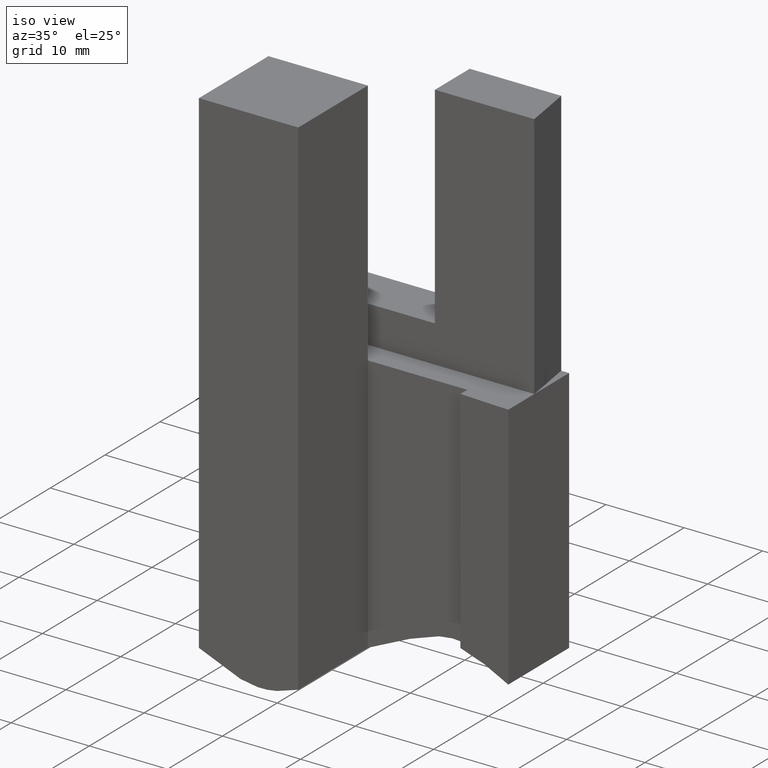
[diagram: clean part render]
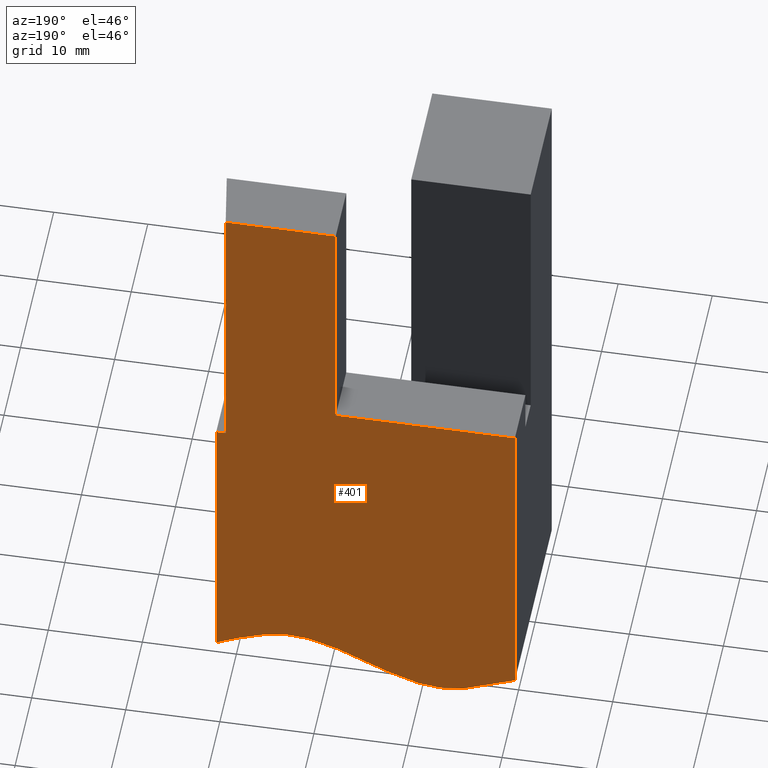
[diagram: tour spotlight — one face highlighted and labeled with its STEP entity id]
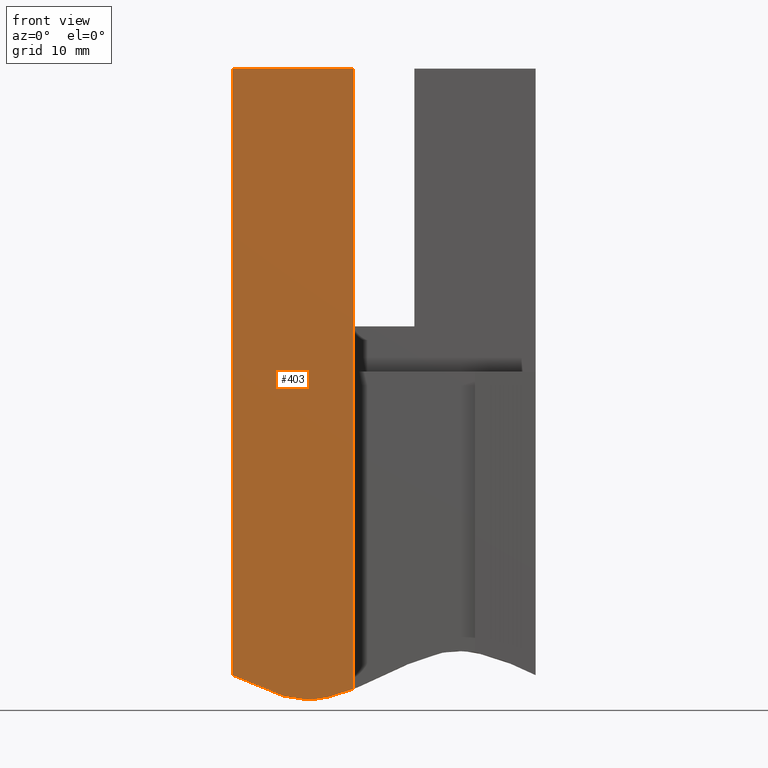
[diagram: tour spotlight — one face highlighted and labeled with its STEP entity id]
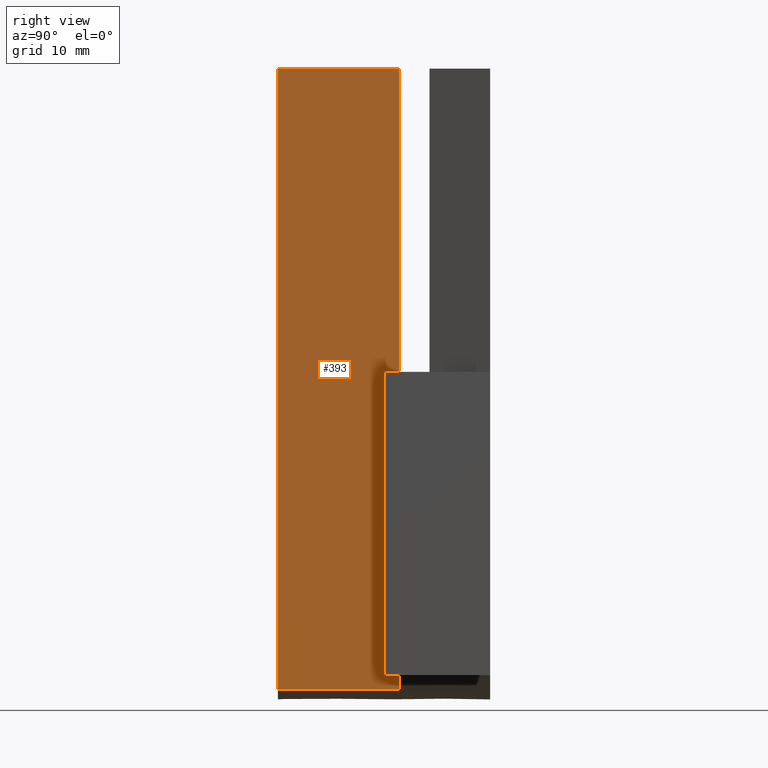
[diagram: tour spotlight — one face highlighted and labeled with its STEP entity id]
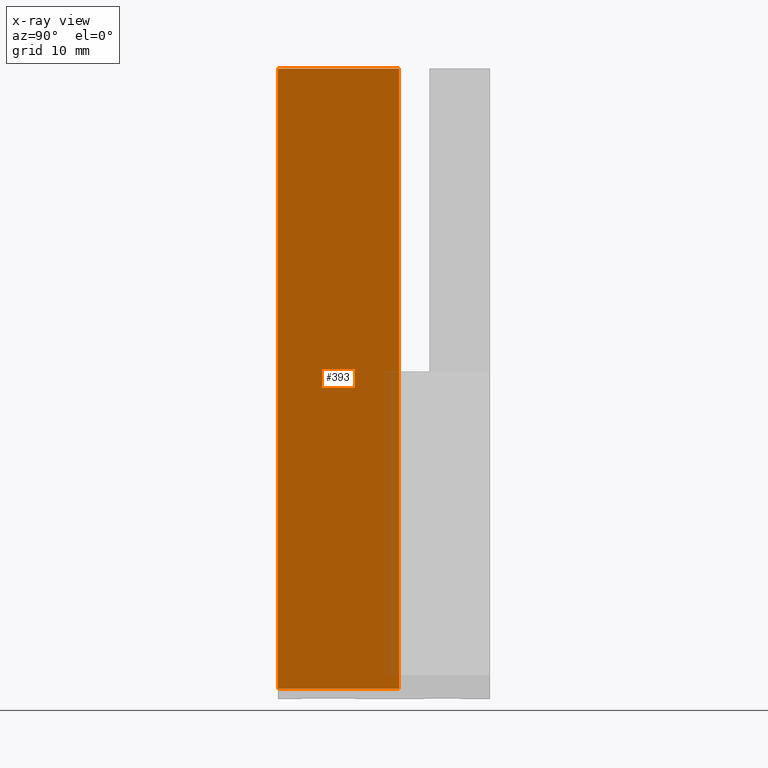
[diagram: x-ray of the same camera — body ghosted, this tour face saturated]
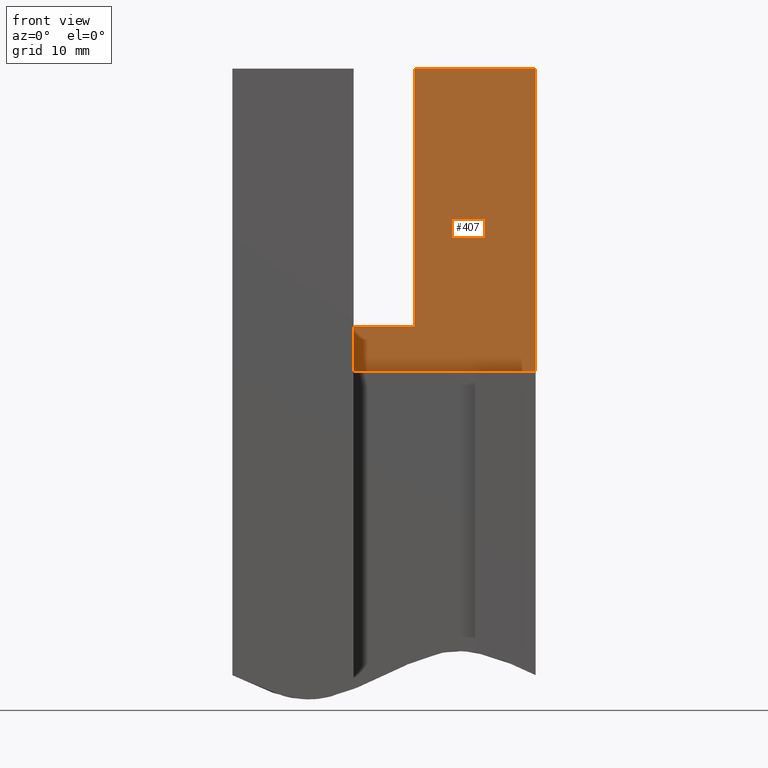
[diagram: tour spotlight — one face highlighted and labeled with its STEP entity id]
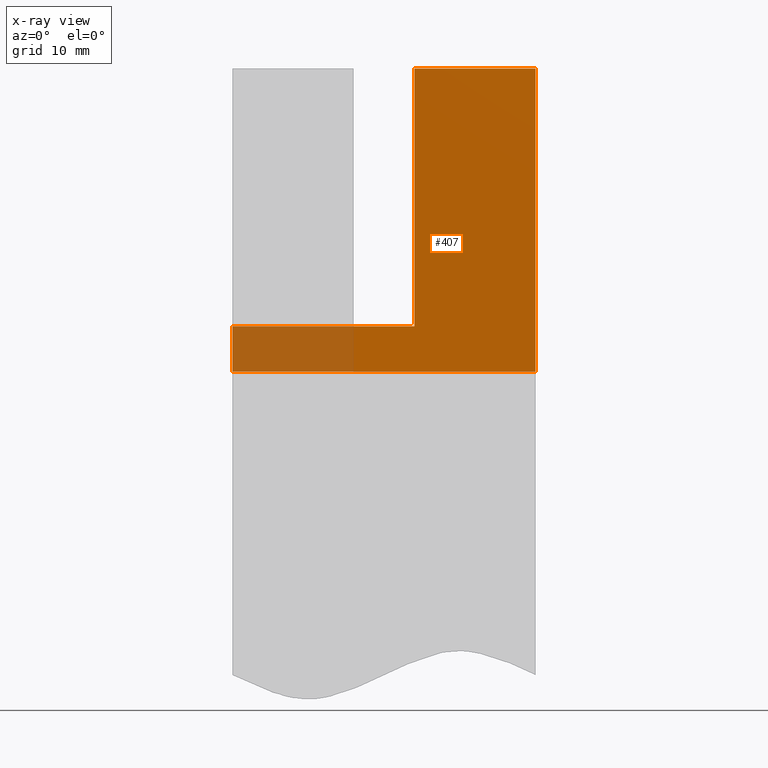
[diagram: x-ray of the same camera — body ghosted, this tour face saturated]
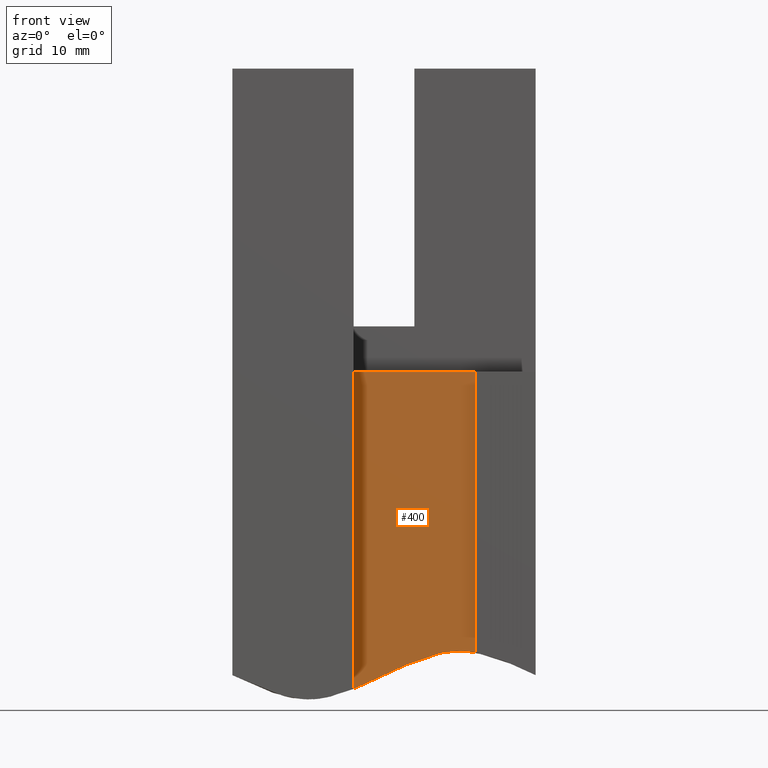
[diagram: tour spotlight — one face highlighted and labeled with its STEP entity id]
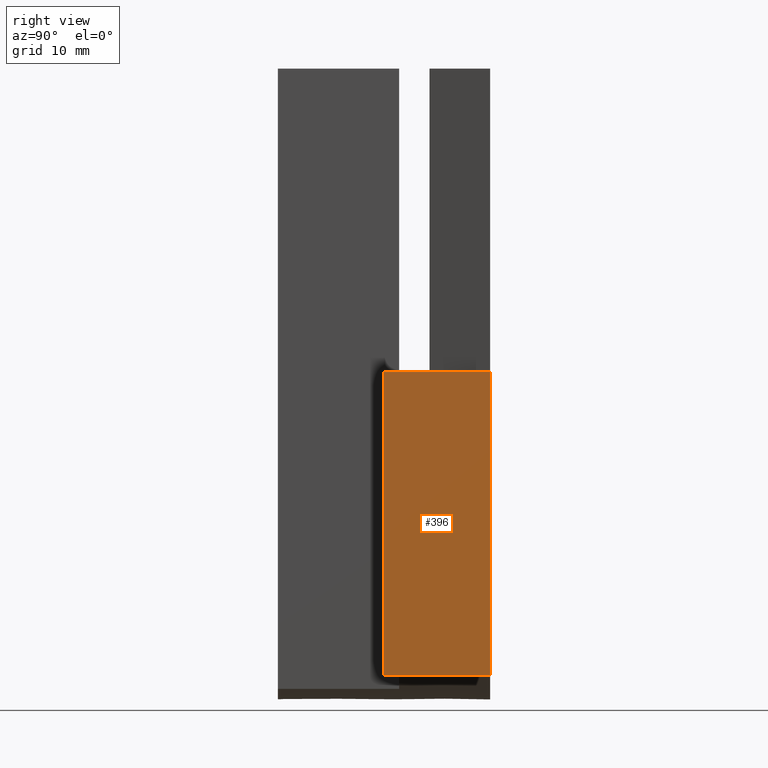
[diagram: tour spotlight — one face highlighted and labeled with its STEP entity id]
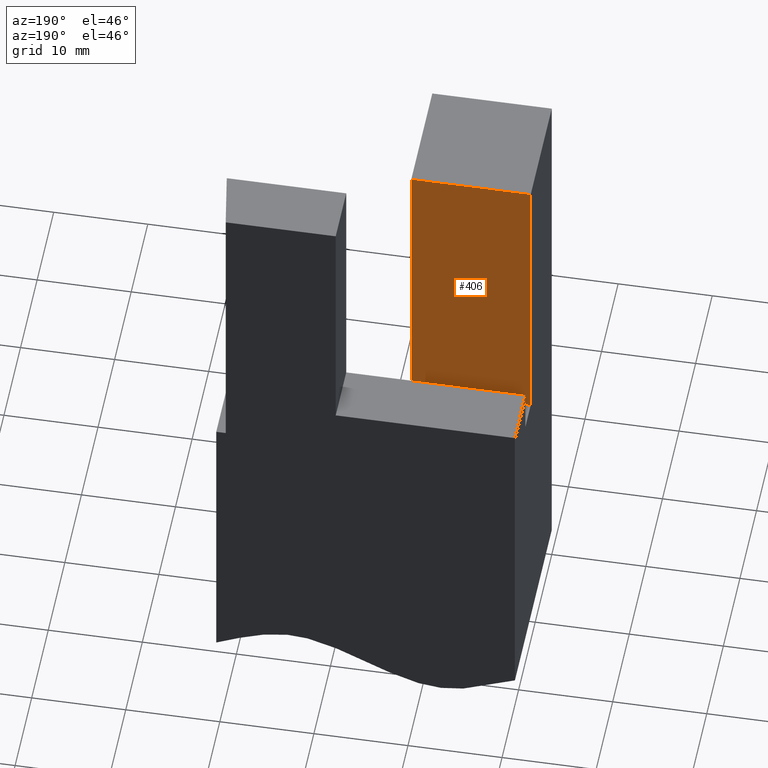
[diagram: tour spotlight — one face highlighted and labeled with its STEP entity id]
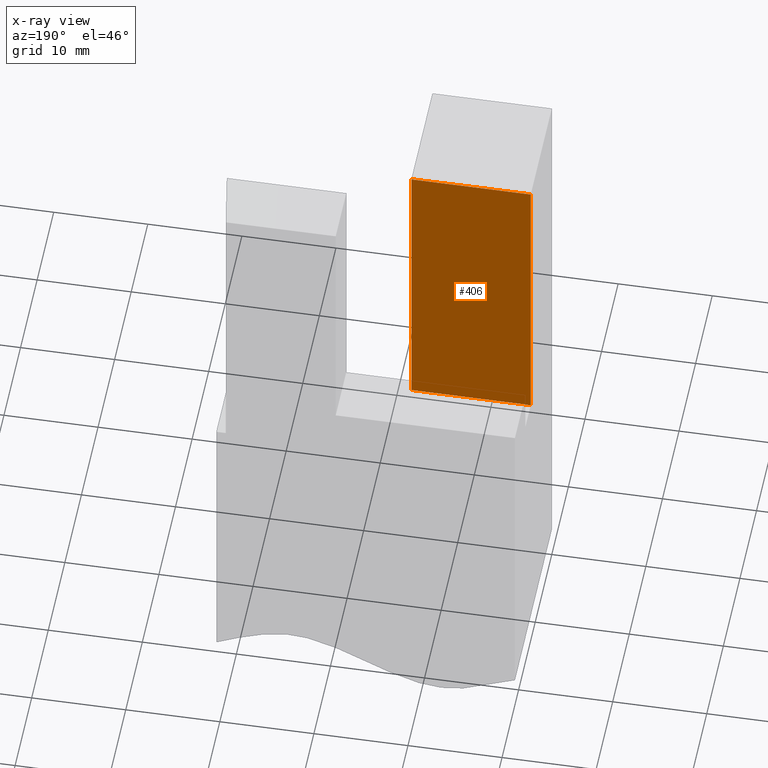
[diagram: x-ray of the same camera — body ghosted, this tour face saturated]
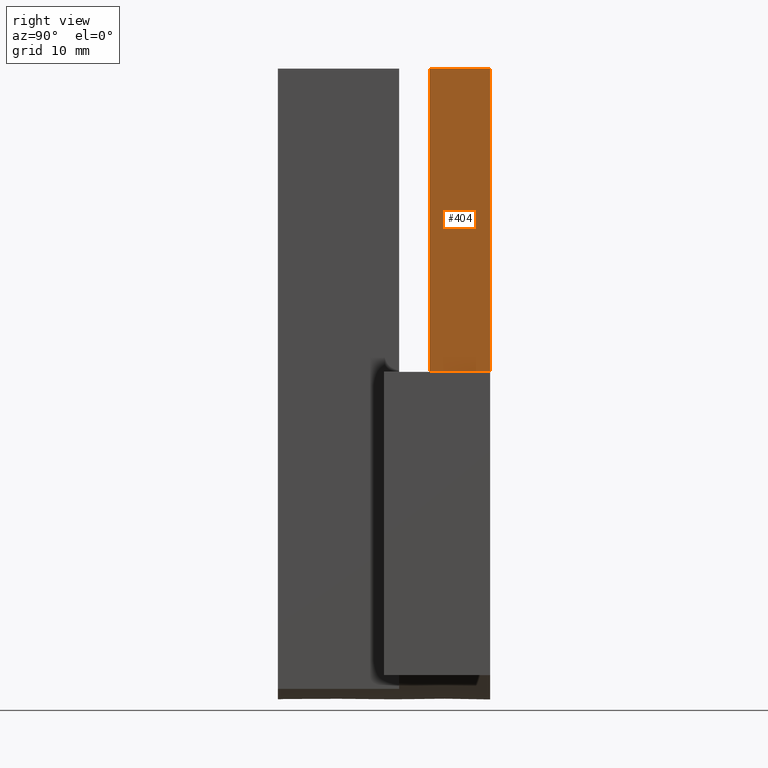
[diagram: tour spotlight — one face highlighted and labeled with its STEP entity id]
A machine part: a face-by-face anatomy tour. The part has 18 B-rep faces; the first image is the clean iso view, then the 8 largest visible faces are spotlighted one at a time (largest first), each with its STEP entity span.

Face 1 — auxiliary view, entity #401. In plain terms, the highlighted planar face has unit normal (0, 1, 0).
Definition (entity closure, byte-faithful):
#123=VECTOR('',#446,1.);
#127=VECTOR('',#451,1.);
#131=VECTOR('',#456,1.);
#134=VECTOR('',#460,1.);
#135=VECTOR('',#463,1.);
#136=VECTOR('',#464,1.);
#137=VECTOR('',#465,1.);
#162=LINE('',#528,#123);
#166=LINE('',#537,#127);
#170=LINE('',#545,#131);
#173=LINE('',#551,#134);
#174=LINE('',#562,#135);
#175=LINE('',#564,#136);
#176=LINE('',#573,#137);
#200=VERTEX_POINT('',#527);
#201=VERTEX_POINT('',#529);
#204=VERTEX_POINT('',#536);
#205=VERTEX_POINT('',#538);
#207=VERTEX_POINT('',#544);
#209=VERTEX_POINT('',#550);
#210=VERTEX_POINT('',#563);
#211=VERTEX_POINT('',#572);
#219=B_SPLINE_CURVE_WITH_KNOTS('',3,(#565,#566,#567,#568,#569,#570,#571),
 .UNSPECIFIED.,.F.,.U.,(4,1,1,1,4),(0.,0.25,0.5,0.75,1.),.UNSPECIFIED.);
#239=EDGE_CURVE('',#201,#200,#162,.T.);
#243=EDGE_CURVE('',#205,#204,#166,.T.);
#247=EDGE_CURVE('',#204,#207,#170,.T.);
#250=EDGE_CURVE('',#209,#207,#173,.T.);
#252=EDGE_CURVE('',#209,#210,#174,.T.);
#253=EDGE_CURVE('',#210,#201,#175,.T.);
#254=EDGE_CURVE('',#200,#211,#219,.F.);
#255=EDGE_CURVE('',#205,#211,#176,.T.);
#307=ORIENTED_EDGE('',*,*,#243,.T.);
#308=ORIENTED_EDGE('',*,*,#247,.T.);
#309=ORIENTED_EDGE('',*,*,#250,.F.);
#310=ORIENTED_EDGE('',*,*,#252,.T.);
#311=ORIENTED_EDGE('',*,*,#253,.T.);
#312=ORIENTED_EDGE('',*,*,#239,.T.);
#313=ORIENTED_EDGE('',*,*,#254,.T.);
#314=ORIENTED_EDGE('',*,*,#255,.F.);
#365=EDGE_LOOP('',(#307,#308,#309,#310,#311,#312,#313,#314));
#383=FACE_BOUND('',#365,.T.);
#401=ADVANCED_FACE('',(#383),#623,.T.);
#419=AXIS2_PLACEMENT_3D('',#561,#462,$);
#446=DIRECTION('',(0.,0.,-1.));
#451=DIRECTION('',(1.,0.,0.));
#456=DIRECTION('',(0.,0.,1.));
#460=DIRECTION('',(-1.,0.,0.));
#462=DIRECTION('',(0.,1.,0.));
#463=DIRECTION('',(0.,0.,-1.));
#464=DIRECTION('',(1.,0.,0.));
#465=DIRECTION('',(0.,0.,-1.));
#527=CARTESIAN_POINT('',(1.24999999999999,0.875,-2.49999999999998));
#528=CARTESIAN_POINT('',(1.25,0.875,0.));
#529=CARTESIAN_POINT('',(1.25,0.875,-1.25));
#536=CARTESIAN_POINT('',(0.749999999999996,0.875,-1.0625));
#537=CARTESIAN_POINT('',(0.499999999999999,0.875,-1.0625));
#538=CARTESIAN_POINT('',(1.95178083614109E-16,0.875,-1.0625));
#544=CARTESIAN_POINT('',(0.749999999999996,0.875,0.));
#545=CARTESIAN_POINT('',(0.749999999999996,0.875,0.));
#550=CARTESIAN_POINT('',(1.21040388991886,0.875,0.));
#551=CARTESIAN_POINT('',(1.25,0.875,0.));
#561=CARTESIAN_POINT('',(0.625,0.875,0.));
#562=CARTESIAN_POINT('',(1.21040388991886,0.875,0.));
#563=CARTESIAN_POINT('',(1.21040388991886,0.875,-1.25));
#564=CARTESIAN_POINT('',(0.932160951058981,0.875,-1.25));
#565=CARTESIAN_POINT('',(-8.39223703653661E-15,0.875,-2.49999999999995));
#566=CARTESIAN_POINT('',(0.104166666666656,0.875,-2.54999999999996));
#567=CARTESIAN_POINT('',(0.312499999999986,0.875,-2.64999999999996));
#568=CARTESIAN_POINT('',(0.624999999999992,0.875,-2.49999999999998));
#569=CARTESIAN_POINT('',(0.937499999999992,0.875,-2.34999999999998));
#570=CARTESIAN_POINT('',(1.14583333333333,0.875,-2.44999999999998));
#571=CARTESIAN_POINT('',(1.24999999999999,0.875,-2.49999999999998));
#572=CARTESIAN_POINT('',(-8.39223703653661E-15,0.875,-2.49999999999995));
#573=CARTESIAN_POINT('',(0.,0.875,0.));
#623=PLANE('',#419);

Face 2 — front view, entity #403. In plain terms, the highlighted planar face has unit normal (0, -1, 0).
Definition (entity closure, byte-faithful):
#111=VECTOR('',#431,1.);
#139=VECTOR('',#468,1.);
#140=VECTOR('',#469,1.);
#150=LINE('',#494,#111);
#178=LINE('',#599,#139);
#179=LINE('',#601,#140);
#190=VERTEX_POINT('',#495);
#191=VERTEX_POINT('',#496);
#212=VERTEX_POINT('',#596);
#213=VERTEX_POINT('',#600);
#220=B_SPLINE_CURVE_WITH_KNOTS('',3,(#588,#589,#590,#591,#592,#593,#594,
#595),.UNSPECIFIED.,.F.,.U.,(4,2,2,4),(0.,0.732094420139848,1.07029212507306,
1.37600662563691),.UNSPECIFIED.);
#225=EDGE_CURVE('',#190,#191,#150,.T.);
#256=EDGE_CURVE('',#212,#190,#220,.T.);
#258=EDGE_CURVE('',#213,#191,#178,.T.);
#259=EDGE_CURVE('',#213,#212,#179,.T.);
#323=ORIENTED_EDGE('',*,*,#256,.T.);
#324=ORIENTED_EDGE('',*,*,#225,.T.);
#325=ORIENTED_EDGE('',*,*,#258,.F.);
#326=ORIENTED_EDGE('',*,*,#259,.T.);
#367=EDGE_LOOP('',(#323,#324,#325,#326));
#385=FACE_BOUND('',#367,.T.);
#403=ADVANCED_FACE('',(#385),#624,.T.);
#420=AXIS2_PLACEMENT_3D('',#598,#467,$);
#431=DIRECTION('',(0.,0.,1.));
#467=DIRECTION('',(1.04902962956708E-16,-1.,0.));
#468=DIRECTION('',(1.,1.04902962956708E-16,0.));
#469=DIRECTION('',(0.,0.,-1.));
#494=CARTESIAN_POINT('',(0.499999999999992,4.37095678986282E-17,0.));
#495=CARTESIAN_POINT('',(0.499999999999992,4.37095678986282E-17,-2.55679999999997));
#496=CARTESIAN_POINT('',(0.499999999999992,1.83580185174238E-15,0.));
#588=CARTESIAN_POINT('',(-8.39223703653661E-15,0.,-2.49999999999995));
#589=CARTESIAN_POINT('',(0.0866141732283283,9.08608340569808E-18,-2.54157480314956));
#590=CARTESIAN_POINT('',(0.17322834645668,-9.08608340569972E-18,-2.58314960629917));
#591=CARTESIAN_POINT('',(0.299854728212617,4.19739922898524E-18,-2.60190738797095));
#592=CARTESIAN_POINT('',(0.340608797792548,-5.15650322808514E-18,-2.60181108190873));
#593=CARTESIAN_POINT('',(0.434197524855042,4.66123154011714E-18,-2.58234349402926));
#594=CARTESIAN_POINT('',(0.478239572067207,-4.34775232119665E-18,-2.56627180630594));
#595=CARTESIAN_POINT('',(0.519685039370079,0.,-2.54863740931258));
#596=CARTESIAN_POINT('',(-8.39223703653661E-15,0.,-2.49999999999995));
#598=CARTESIAN_POINT('',(0.625,6.55643518479423E-17,0.));
#599=CARTESIAN_POINT('',(0.,0.,0.));
#600=CARTESIAN_POINT('',(0.,0.,0.));
#601=CARTESIAN_POINT('',(0.,0.,0.));
#624=PLANE('',#420);

Face 3 — right view, entity #393. An x-ray twin of the same camera follows (body ghosted, this face saturated) — the face is partly hidden behind the body. In plain terms, the highlighted planar face has unit normal (-1, 0, 0).
Definition (entity closure, byte-faithful):
#111=VECTOR('',#431,1.);
#112=VECTOR('',#432,1.);
#113=VECTOR('',#433,1.);
#114=VECTOR('',#434,1.);
#150=LINE('',#494,#111);
#151=LINE('',#502,#112);
#152=LINE('',#504,#113);
#153=LINE('',#506,#114);
#190=VERTEX_POINT('',#495);
#191=VERTEX_POINT('',#496);
#192=VERTEX_POINT('',#501);
#193=VERTEX_POINT('',#503);
#194=VERTEX_POINT('',#505);
#216=B_SPLINE_CURVE_WITH_KNOTS('',3,(#497,#498,#499,#500),.UNSPECIFIED.,
 .F.,.U.,(4,4),(0.,1.37),.UNSPECIFIED.);
#225=EDGE_CURVE('',#190,#191,#150,.T.);
#226=EDGE_CURVE('',#190,#192,#216,.T.);
#227=EDGE_CURVE('',#192,#193,#151,.T.);
#228=EDGE_CURVE('',#194,#193,#152,.T.);
#229=EDGE_CURVE('',#191,#194,#153,.T.);
#270=ORIENTED_EDGE('',*,*,#225,.F.);
#271=ORIENTED_EDGE('',*,*,#226,.T.);
#272=ORIENTED_EDGE('',*,*,#227,.T.);
#273=ORIENTED_EDGE('',*,*,#228,.F.);
#274=ORIENTED_EDGE('',*,*,#229,.F.);
#357=EDGE_LOOP('',(#270,#271,#272,#273,#274));
#375=FACE_BOUND('',#357,.T.);
#393=ADVANCED_FACE('',(#375),#615,.F.);
#411=AXIS2_PLACEMENT_3D('',#493,#430,$);
#430=DIRECTION('',(-1.,7.86772222175311E-15,0.));
#431=DIRECTION('',(0.,0.,1.));
#432=DIRECTION('',(0.,0.,1.));
#433=DIRECTION('',(0.,0.,-1.));
#434=DIRECTION('',(7.86772222175311E-15,1.,0.));
#493=CARTESIAN_POINT('',(0.499999999999994,0.250000000000001,0.));
#494=CARTESIAN_POINT('',(0.499999999999992,4.37095678986282E-17,0.));
#495=CARTESIAN_POINT('',(0.499999999999992,4.37095678986282E-17,-2.55679999999997));
#496=CARTESIAN_POINT('',(0.499999999999992,1.83580185174238E-15,0.));
#497=CARTESIAN_POINT('',(0.499999999999992,-0.019685039370079,-2.55679999999997));
#498=CARTESIAN_POINT('',(0.499999999999993,0.16010498687664,-2.55679999999997));
#499=CARTESIAN_POINT('',(0.499999999999995,0.33989501312336,-2.55679999999997));
#500=CARTESIAN_POINT('',(0.499999999999996,0.519685039370079,-2.55679999999997));
#501=CARTESIAN_POINT('',(0.5,0.5,-2.55679999999997));
#502=CARTESIAN_POINT('',(0.5,0.5,-4.78113594738593));
#503=CARTESIAN_POINT('',(0.500000000000002,0.500000000000011,-1.25));
#504=CARTESIAN_POINT('',(0.499999999999996,0.5,0.));
#505=CARTESIAN_POINT('',(0.499999999999996,0.5,0.));
#506=CARTESIAN_POINT('',(0.499999999999995,0.343750000000001,0.));
#615=PLANE('',#411);

Face 4 — front view, entity #407. An x-ray twin of the same camera follows (body ghosted, this face saturated) — the face is partly hidden behind the body. In plain terms, the highlighted planar face has unit normal (0, 1, 0).
Definition (entity closure, byte-faithful):
#118=VECTOR('',#440,1.);
#125=VECTOR('',#449,1.);
#129=VECTOR('',#454,1.);
#132=VECTOR('',#458,1.);
#142=VECTOR('',#472,1.);
#145=VECTOR('',#478,1.);
#157=LINE('',#519,#118);
#164=LINE('',#532,#125);
#168=LINE('',#541,#129);
#171=LINE('',#547,#132);
#181=LINE('',#604,#142);
#184=LINE('',#611,#145);
#197=VERTEX_POINT('',#518);
#198=VERTEX_POINT('',#520);
#202=VERTEX_POINT('',#533);
#203=VERTEX_POINT('',#534);
#206=VERTEX_POINT('',#542);
#208=VERTEX_POINT('',#548);
#234=EDGE_CURVE('',#197,#198,#157,.T.);
#241=EDGE_CURVE('',#202,#203,#164,.T.);
#245=EDGE_CURVE('',#206,#203,#168,.T.);
#248=EDGE_CURVE('',#206,#208,#171,.T.);
#261=EDGE_CURVE('',#197,#208,#181,.T.);
#264=EDGE_CURVE('',#198,#202,#184,.T.);
#338=ORIENTED_EDGE('',*,*,#245,.T.);
#339=ORIENTED_EDGE('',*,*,#241,.F.);
#340=ORIENTED_EDGE('',*,*,#264,.F.);
#341=ORIENTED_EDGE('',*,*,#234,.F.);
#342=ORIENTED_EDGE('',*,*,#261,.T.);
#343=ORIENTED_EDGE('',*,*,#248,.F.);
#371=EDGE_LOOP('',(#338,#339,#340,#341,#342,#343));
#389=FACE_BOUND('',#371,.T.);
#407=ADVANCED_FACE('',(#389),#628,.F.);
#424=AXIS2_PLACEMENT_3D('',#610,#477,$);
#440=DIRECTION('',(-1.,1.54557032089551E-14,0.));
#449=DIRECTION('',(1.,-1.54557032089551E-14,0.));
#454=DIRECTION('',(0.,0.,-1.));
#458=DIRECTION('',(1.,-1.54557032089551E-14,0.));
#472=DIRECTION('',(0.,0.,1.));
#477=DIRECTION('',(0.,1.,0.));
#478=DIRECTION('',(0.,0.,1.));
#518=CARTESIAN_POINT('',(1.25,0.625,-1.25));
#519=CARTESIAN_POINT('',(1.25,0.625,-1.25));
#520=CARTESIAN_POINT('',(1.03154580240763E-14,0.625000000000019,-1.25));
#532=CARTESIAN_POINT('',(0.5,0.625000000000011,-1.0625));
#533=CARTESIAN_POINT('',(1.03154580240763E-14,0.625000000000019,-1.0625));
#534=CARTESIAN_POINT('',(0.749999999999996,0.625000000000008,-1.0625));
#541=CARTESIAN_POINT('',(0.749999999999996,0.624999999999996,0.));
#542=CARTESIAN_POINT('',(0.749999999999996,0.624999999999996,0.));
#547=CARTESIAN_POINT('',(0.625000000000004,0.62500000000001,0.));
#548=CARTESIAN_POINT('',(1.25,0.625,0.));
#604=CARTESIAN_POINT('',(1.25,0.624999999999976,0.));
#610=CARTESIAN_POINT('',(0.874999999999996,0.624999999999996,0.));
#611=CARTESIAN_POINT('',(0.,0.625000000000019,0.));
#628=PLANE('',#424);

Face 5 — front view, entity #400. In plain terms, the highlighted planar face has unit normal (0, 1, 0).
Definition (entity closure, byte-faithful):
#112=VECTOR('',#432,1.);
#116=VECTOR('',#437,1.);
#121=VECTOR('',#443,1.);
#151=LINE('',#502,#112);
#155=LINE('',#510,#116);
#160=LINE('',#524,#121);
#192=VERTEX_POINT('',#501);
#193=VERTEX_POINT('',#503);
#195=VERTEX_POINT('',#509);
#196=VERTEX_POINT('',#511);
#218=B_SPLINE_CURVE_WITH_KNOTS('',3,(#553,#554,#555,#556,#557,#558,#559,
#560),.UNSPECIFIED.,.F.,.U.,(4,2,2,4),(0.,0.732328172806701,1.08271797790238,
1.39317423581127),.UNSPECIFIED.);
#227=EDGE_CURVE('',#192,#193,#151,.T.);
#231=EDGE_CURVE('',#196,#195,#155,.T.);
#237=EDGE_CURVE('',#195,#193,#160,.T.);
#251=EDGE_CURVE('',#192,#196,#218,.T.);
#303=ORIENTED_EDGE('',*,*,#237,.T.);
#304=ORIENTED_EDGE('',*,*,#227,.F.);
#305=ORIENTED_EDGE('',*,*,#251,.T.);
#306=ORIENTED_EDGE('',*,*,#231,.T.);
#364=EDGE_LOOP('',(#303,#304,#305,#306));
#382=FACE_BOUND('',#364,.T.);
#400=ADVANCED_FACE('',(#382),#622,.F.);
#418=AXIS2_PLACEMENT_3D('',#552,#461,$);
#432=DIRECTION('',(0.,0.,1.));
#437=DIRECTION('',(0.,0.,1.));
#443=DIRECTION('',(-1.,0.,0.));
#461=DIRECTION('',(0.,1.,0.));
#501=CARTESIAN_POINT('',(0.5,0.5,-2.55679999999997));
#502=CARTESIAN_POINT('',(0.5,0.5,-4.78113594738593));
#503=CARTESIAN_POINT('',(0.500000000000002,0.500000000000011,-1.25));
#509=CARTESIAN_POINT('',(0.999999999999997,0.5,-1.25));
#510=CARTESIAN_POINT('',(1.,0.5,-4.78113594738593));
#511=CARTESIAN_POINT('',(1.,0.5,-2.40559999999998));
#524=CARTESIAN_POINT('',(0.697916666666669,0.5,-1.25));
#552=CARTESIAN_POINT('',(0.75,0.5,-4.78113594738593));
#553=CARTESIAN_POINT('',(0.480314960629917,0.5,-2.56448642973503));
#554=CARTESIAN_POINT('',(0.570239441521331,0.5,-2.53057533428953));
#555=CARTESIAN_POINT('',(0.660102666609881,0.5,-2.47944660482287));
#556=CARTESIAN_POINT('',(0.793012286424079,0.5,-2.42585744611378));
#557=CARTESIAN_POINT('',(0.838664925830264,0.5,-2.41086032656842));
#558=CARTESIAN_POINT('',(0.925757303103109,0.5,-2.39795890922153));
#559=CARTESIAN_POINT('',(0.967950318082869,0.5,-2.39812119456858));
#560=CARTESIAN_POINT('',(1.01968503937008,0.5,-2.40946523809266));
#622=PLANE('',#418);

Face 6 — right view, entity #396. In plain terms, the highlighted planar face has unit normal (1, 0, 0).
Definition (entity closure, byte-faithful):
#108=VECTOR('',#427,1.);
#117=VECTOR('',#439,1.);
#122=VECTOR('',#445,1.);
#123=VECTOR('',#446,1.);
#124=VECTOR('',#447,1.);
#147=LINE('',#488,#108);
#156=LINE('',#517,#117);
#161=LINE('',#526,#122);
#162=LINE('',#528,#123);
#163=LINE('',#530,#124);
#186=VERTEX_POINT('',#486);
#188=VERTEX_POINT('',#489);
#197=VERTEX_POINT('',#518);
#200=VERTEX_POINT('',#527);
#201=VERTEX_POINT('',#529);
#222=EDGE_CURVE('',#188,#186,#147,.T.);
#233=EDGE_CURVE('',#197,#188,#156,.T.);
#238=EDGE_CURVE('',#186,#200,#161,.T.);
#239=EDGE_CURVE('',#201,#200,#162,.T.);
#240=EDGE_CURVE('',#201,#197,#163,.T.);
#286=ORIENTED_EDGE('',*,*,#222,.T.);
#287=ORIENTED_EDGE('',*,*,#238,.T.);
#288=ORIENTED_EDGE('',*,*,#239,.F.);
#289=ORIENTED_EDGE('',*,*,#240,.T.);
#290=ORIENTED_EDGE('',*,*,#233,.T.);
#360=EDGE_LOOP('',(#286,#287,#288,#289,#290));
#378=FACE_BOUND('',#360,.T.);
#396=ADVANCED_FACE('',(#378),#618,.T.);
#414=AXIS2_PLACEMENT_3D('',#525,#444,$);
#427=DIRECTION('',(0.,1.55287579767916E-31,-1.));
#439=DIRECTION('',(0.,-1.,-1.57678304053942E-31));
#444=DIRECTION('',(1.,0.,0.));
#445=DIRECTION('',(0.,1.,0.));
#446=DIRECTION('',(0.,0.,-1.));
#447=DIRECTION('',(0.,-1.,0.));
#486=CARTESIAN_POINT('',(1.25,0.43789805517924,-2.49999999999998));
#488=CARTESIAN_POINT('',(1.25,0.43789805517924,-0.625));
#489=CARTESIAN_POINT('',(1.25,0.43789805517924,-1.25));
#517=CARTESIAN_POINT('',(1.25,0.375,-1.25));
#518=CARTESIAN_POINT('',(1.25,0.625,-1.25));
#525=CARTESIAN_POINT('',(1.25,0.4375,0.));
#526=CARTESIAN_POINT('',(1.24999999999999,-3.4741643059798,-2.49999999999998));
#527=CARTESIAN_POINT('',(1.24999999999999,0.875,-2.49999999999998));
#528=CARTESIAN_POINT('',(1.25,0.875,0.));
#529=CARTESIAN_POINT('',(1.25,0.875,-1.25));
#530=CARTESIAN_POINT('',(1.25,0.598309978579267,-1.25));
#618=PLANE('',#414);

Face 7 — auxiliary view, entity #406. An x-ray twin of the same camera follows (body ghosted, this face saturated) — the face is partly hidden behind the body. In plain terms, the highlighted planar face has unit normal (0, -1, 0).
Definition (entity closure, byte-faithful):
#113=VECTOR('',#433,1.);
#120=VECTOR('',#442,1.);
#143=VECTOR('',#475,1.);
#144=VECTOR('',#476,1.);
#152=LINE('',#504,#113);
#159=LINE('',#523,#120);
#182=LINE('',#607,#143);
#183=LINE('',#609,#144);
#193=VERTEX_POINT('',#503);
#194=VERTEX_POINT('',#505);
#199=VERTEX_POINT('',#522);
#214=VERTEX_POINT('',#608);
#228=EDGE_CURVE('',#194,#193,#152,.T.);
#236=EDGE_CURVE('',#199,#193,#159,.T.);
#262=EDGE_CURVE('',#214,#199,#182,.T.);
#263=EDGE_CURVE('',#194,#214,#183,.T.);
#334=ORIENTED_EDGE('',*,*,#228,.T.);
#335=ORIENTED_EDGE('',*,*,#236,.F.);
#336=ORIENTED_EDGE('',*,*,#262,.F.);
#337=ORIENTED_EDGE('',*,*,#263,.F.);
#370=EDGE_LOOP('',(#334,#335,#336,#337));
#388=FACE_BOUND('',#370,.T.);
#406=ADVANCED_FACE('',(#388),#627,.F.);
#423=AXIS2_PLACEMENT_3D('',#606,#474,$);
#433=DIRECTION('',(0.,0.,-1.));
#442=DIRECTION('',(1.,-1.52109296287228E-14,0.));
#474=DIRECTION('',(0.,-1.,0.));
#475=DIRECTION('',(0.,0.,-1.));
#476=DIRECTION('',(-1.,0.,0.));
#503=CARTESIAN_POINT('',(0.500000000000002,0.500000000000011,-1.25));
#504=CARTESIAN_POINT('',(0.499999999999996,0.5,0.));
#505=CARTESIAN_POINT('',(0.499999999999996,0.5,0.));
#522=CARTESIAN_POINT('',(8.30481790073936E-15,0.500000000000019,-1.25));
#523=CARTESIAN_POINT('',(8.30481790073936E-15,0.500000000000019,-1.25));
#606=CARTESIAN_POINT('',(0.249999999999998,0.5,0.));
#607=CARTESIAN_POINT('',(0.,0.500000000000019,0.));
#608=CARTESIAN_POINT('',(-8.67864294575437E-16,0.5,0.));
#609=CARTESIAN_POINT('',(0.437499999999999,0.5,0.));
#627=PLANE('',#423);

Face 8 — right view, entity #404. In plain terms, the highlighted planar face has unit normal (-0.9877, -0.1564, 0).
Definition (entity closure, byte-faithful):
#133=VECTOR('',#459,1.);
#135=VECTOR('',#463,1.);
#141=VECTOR('',#471,1.);
#142=VECTOR('',#472,1.);
#172=LINE('',#549,#133);
#174=LINE('',#562,#135);
#180=LINE('',#603,#141);
#181=LINE('',#604,#142);
#197=VERTEX_POINT('',#518);
#208=VERTEX_POINT('',#548);
#209=VERTEX_POINT('',#550);
#210=VERTEX_POINT('',#563);
#249=EDGE_CURVE('',#208,#209,#172,.T.);
#252=EDGE_CURVE('',#209,#210,#174,.T.);
#260=EDGE_CURVE('',#210,#197,#180,.T.);
#261=EDGE_CURVE('',#197,#208,#181,.T.);
#327=ORIENTED_EDGE('',*,*,#260,.F.);
#328=ORIENTED_EDGE('',*,*,#252,.F.);
#329=ORIENTED_EDGE('',*,*,#249,.F.);
#330=ORIENTED_EDGE('',*,*,#261,.F.);
#368=EDGE_LOOP('',(#327,#328,#329,#330));
#386=FACE_BOUND('',#368,.T.);
#404=ADVANCED_FACE('',(#386),#625,.F.);
#421=AXIS2_PLACEMENT_3D('',#602,#470,$);
#459=DIRECTION('',(-0.156434465040235,0.987688340595137,0.));
#463=DIRECTION('',(0.,0.,-1.));
#470=DIRECTION('',(-0.987688340595137,-0.156434465040235,0.));
#471=DIRECTION('',(0.156434465040235,-0.987688340595137,0.));
#472=DIRECTION('',(0.,0.,1.));
#518=CARTESIAN_POINT('',(1.25,0.625,-1.25));
#548=CARTESIAN_POINT('',(1.25,0.625,0.));
#549=CARTESIAN_POINT('',(1.24693872476216,0.644328131169751,0.));
#550=CARTESIAN_POINT('',(1.21040388991886,0.875,0.));
#562=CARTESIAN_POINT('',(1.21040388991886,0.875,0.));
#563=CARTESIAN_POINT('',(1.21040388991886,0.875,-1.25));
#602=CARTESIAN_POINT('',(1.23020194495943,0.75,0.));
#603=CARTESIAN_POINT('',(1.21040388991886,0.875,-1.25));
#604=CARTESIAN_POINT('',(1.25,0.624999999999976,0.));
#625=PLANE('',#421);